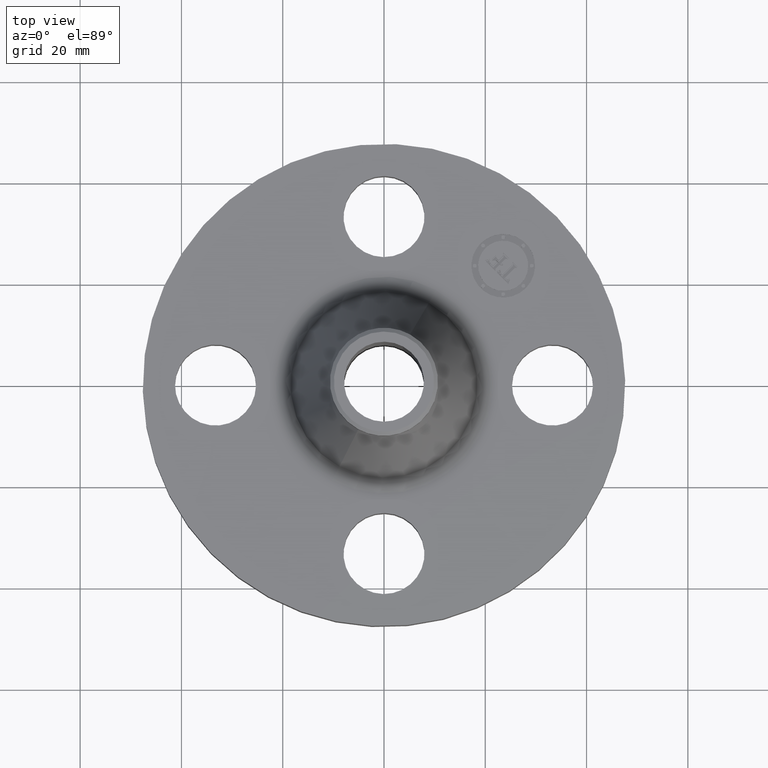
[diagram: clean part render]
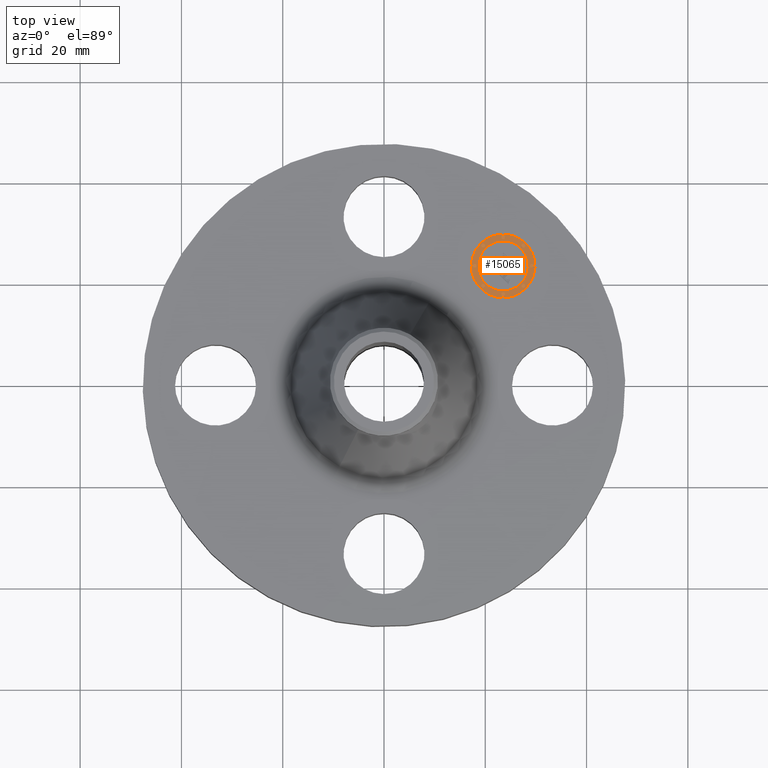
[diagram: same view with one face highlighted and labeled with its STEP entity id]
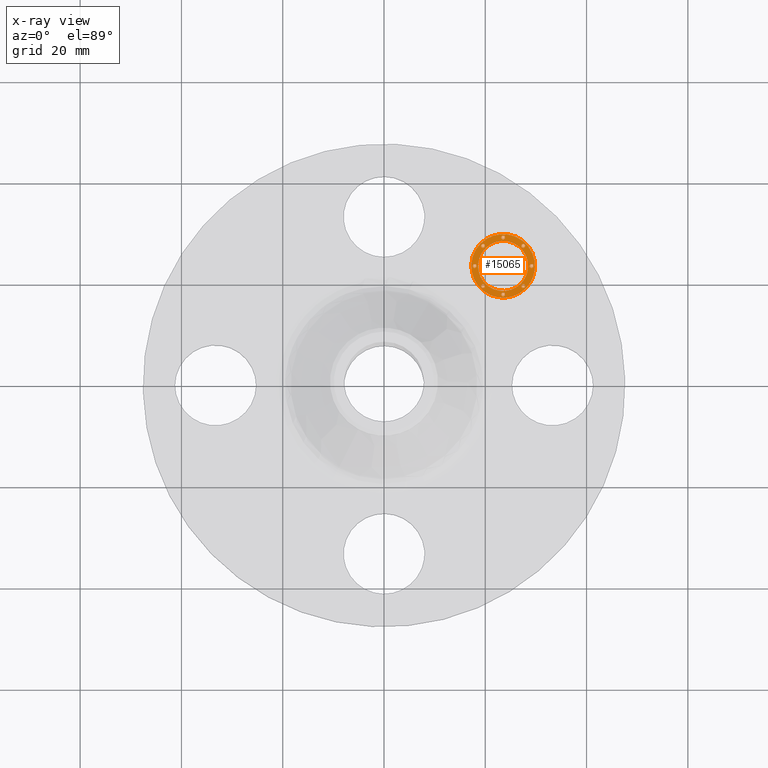
[diagram: x-ray of the same camera — body ghosted, the highlighted face saturated]
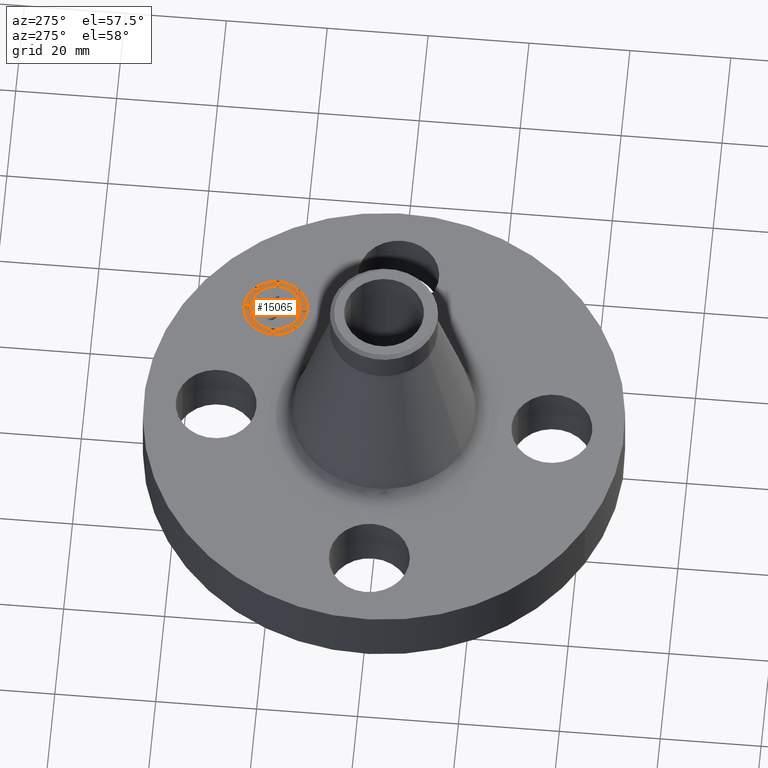
[diagram: same view with one face highlighted and labeled with its STEP entity id]
A machine part, top view. The second image highlights one B-rep face of the part: STEP entity #15065.
The next image is the same camera in x-ray: the body ghosted, the highlighted face saturated — about 0% of this face is hidden behind the body in this view.
A second angle (auxiliary view) of the same face is appended — the face is thin or edge-on in the first view.
In plain terms, the highlighted planar face has unit normal (0, -0, 1).
Its self-contained STEP definition (entity closure, byte-faithful):
#3716=AXIS2_PLACEMENT_3D('Plane Axis2P3D',#3713,#3714,#3715) ;
#14887=AXIS2_PLACEMENT_3D('Circle Axis2P3D',#14885,#14886,$) ;
#14896=AXIS2_PLACEMENT_3D('Circle Axis2P3D',#14894,#14895,$) ;
#14905=AXIS2_PLACEMENT_3D('Circle Axis2P3D',#14903,#14904,$) ;
#14914=AXIS2_PLACEMENT_3D('Circle Axis2P3D',#14912,#14913,$) ;
#14923=AXIS2_PLACEMENT_3D('Circle Axis2P3D',#14921,#14922,$) ;
#14932=AXIS2_PLACEMENT_3D('Circle Axis2P3D',#14930,#14931,$) ;
#14941=AXIS2_PLACEMENT_3D('Circle Axis2P3D',#14939,#14940,$) ;
#14950=AXIS2_PLACEMENT_3D('Circle Axis2P3D',#14948,#14949,$) ;
#14959=AXIS2_PLACEMENT_3D('Circle Axis2P3D',#14957,#14958,$) ;
#14968=AXIS2_PLACEMENT_3D('Circle Axis2P3D',#14966,#14967,$) ;
#14977=AXIS2_PLACEMENT_3D('Circle Axis2P3D',#14975,#14976,$) ;
#14986=AXIS2_PLACEMENT_3D('Circle Axis2P3D',#14984,#14985,$) ;
#14995=AXIS2_PLACEMENT_3D('Circle Axis2P3D',#14993,#14994,$) ;
#15004=AXIS2_PLACEMENT_3D('Circle Axis2P3D',#15002,#15003,$) ;
#15013=AXIS2_PLACEMENT_3D('Circle Axis2P3D',#15011,#15012,$) ;
#15022=AXIS2_PLACEMENT_3D('Circle Axis2P3D',#15020,#15021,$) ;
#15031=AXIS2_PLACEMENT_3D('Circle Axis2P3D',#15029,#15030,$) ;
#15040=AXIS2_PLACEMENT_3D('Circle Axis2P3D',#15038,#15039,$) ;
#15049=AXIS2_PLACEMENT_3D('Circle Axis2P3D',#15047,#15048,$) ;
#15058=AXIS2_PLACEMENT_3D('Circle Axis2P3D',#15056,#15057,$) ;
#3713=CARTESIAN_POINT('Axis2P3D Location',(0.,0.,0.485000000002)) ;
#14885=CARTESIAN_POINT('Axis2P3D Location',(0.926309883358,0.926309883358,0.485000000002)) ;
#14889=CARTESIAN_POINT('Vertex',(0.751300955014,1.1013188117,0.485000000002)) ;
#14891=CARTESIAN_POINT('Vertex',(1.1013188117,0.751300955014,0.485000000002)) ;
#14894=CARTESIAN_POINT('Axis2P3D Location',(0.926309883358,0.926309883358,0.485000000002)) ;
#14903=CARTESIAN_POINT('Axis2P3D Location',(0.926309883358,0.926309883358,0.485000000002)) ;
#14907=CARTESIAN_POINT('Vertex',(1.06419570569,0.788424061026,0.485000000002)) ;
#14909=CARTESIAN_POINT('Vertex',(0.788424061026,1.06419570569,0.485000000002)) ;
#14912=CARTESIAN_POINT('Axis2P3D Location',(0.926309883358,0.926309883358,0.485000000002)) ;
#14921=CARTESIAN_POINT('Axis2P3D Location',(0.76986250802,0.76986250802,0.485000000002)) ;
#14925=CARTESIAN_POINT('Vertex',(0.780469109738,0.759255906302,0.485000000002)) ;
#14927=CARTESIAN_POINT('Vertex',(0.759255906302,0.780469109738,0.485000000002)) ;
#14930=CARTESIAN_POINT('Axis2P3D Location',(0.76986250802,0.76986250802,0.485000000002)) ;
#14939=CARTESIAN_POINT('Axis2P3D Location',(0.76986250802,1.0827572587,0.485000000002)) ;
#14943=CARTESIAN_POINT('Vertex',(0.780469109738,1.07215065698,0.485000000002)) ;
#14945=CARTESIAN_POINT('Vertex',(0.759255906302,1.09336386041,0.485000000002)) ;
#14948=CARTESIAN_POINT('Axis2P3D Location',(0.76986250802,1.0827572587,0.485000000002)) ;
#14957=CARTESIAN_POINT('Axis2P3D Location',(0.705059883357,0.926309883358,0.485000000002)) ;
#14961=CARTESIAN_POINT('Vertex',(0.715666485075,0.91570328164,0.485000000002)) ;
#14963=CARTESIAN_POINT('Vertex',(0.694453281639,0.936916485076,0.485000000002)) ;
#14966=CARTESIAN_POINT('Axis2P3D Location',(0.705059883357,0.926309883358,0.485000000002)) ;
#14975=CARTESIAN_POINT('Axis2P3D Location',(1.0827572587,1.0827572587,0.485000000002)) ;
#14979=CARTESIAN_POINT('Vertex',(1.09336386041,1.07215065698,0.485000000002)) ;
#14981=CARTESIAN_POINT('Vertex',(1.07215065698,1.09336386041,0.485000000002)) ;
#14984=CARTESIAN_POINT('Axis2P3D Location',(1.0827572587,1.0827572587,0.485000000002)) ;
#14993=CARTESIAN_POINT('Axis2P3D Location',(0.926309883358,1.14755988336,0.485000000002)) ;
#14997=CARTESIAN_POINT('Vertex',(0.936916485076,1.13695328164,0.485000000002)) ;
#14999=CARTESIAN_POINT('Vertex',(0.91570328164,1.15816648508,0.485000000002)) ;
#15002=CARTESIAN_POINT('Axis2P3D Location',(0.926309883358,1.14755988336,0.485000000002)) ;
#15011=CARTESIAN_POINT('Axis2P3D Location',(1.0827572587,0.76986250802,0.485000000002)) ;
#15015=CARTESIAN_POINT('Vertex',(1.07215065698,0.780469109738,0.485000000002)) ;
#15017=CARTESIAN_POINT('Vertex',(1.09336386041,0.759255906302,0.485000000002)) ;
#15020=CARTESIAN_POINT('Axis2P3D Location',(1.0827572587,0.76986250802,0.485000000002)) ;
#15029=CARTESIAN_POINT('Axis2P3D Location',(0.926309883358,0.705059883357,0.485000000002)) ;
#15033=CARTESIAN_POINT('Vertex',(0.91570328164,0.715666485075,0.485000000002)) ;
#15035=CARTESIAN_POINT('Vertex',(0.936916485076,0.694453281639,0.485000000002)) ;
#15038=CARTESIAN_POINT('Axis2P3D Location',(0.926309883358,0.705059883357,0.485000000002)) ;
#15047=CARTESIAN_POINT('Axis2P3D Location',(1.14755988336,0.926309883358,0.485000000002)) ;
#15051=CARTESIAN_POINT('Vertex',(1.13695328164,0.936916485076,0.485000000002)) ;
#15053=CARTESIAN_POINT('Vertex',(1.15816648508,0.91570328164,0.485000000002)) ;
#15056=CARTESIAN_POINT('Axis2P3D Location',(1.14755988336,0.926309883358,0.485000000002)) ;
#3714=DIRECTION('Axis2P3D Direction',(0.,-0.,0.0393700787402)) ;
#3715=DIRECTION('Axis2P3D XDirection',(0.027838849653,0.027838849653,0.)) ;
#14886=DIRECTION('Axis2P3D Direction',(0.,-0.,0.0393700787402)) ;
#14895=DIRECTION('Axis2P3D Direction',(0.,-0.,0.0393700787402)) ;
#14904=DIRECTION('Axis2P3D Direction',(0.,-0.,0.0393700787402)) ;
#14913=DIRECTION('Axis2P3D Direction',(0.,-0.,0.0393700787402)) ;
#14922=DIRECTION('Axis2P3D Direction',(0.,-0.,0.0393700787402)) ;
#14931=DIRECTION('Axis2P3D Direction',(0.,-0.,0.0393700787402)) ;
#14940=DIRECTION('Axis2P3D Direction',(0.,-0.,0.0393700787402)) ;
#14949=DIRECTION('Axis2P3D Direction',(0.,-0.,0.0393700787402)) ;
#14958=DIRECTION('Axis2P3D Direction',(0.,-0.,0.0393700787402)) ;
#14967=DIRECTION('Axis2P3D Direction',(0.,-0.,0.0393700787402)) ;
#14976=DIRECTION('Axis2P3D Direction',(0.,-0.,0.0393700787402)) ;
#14985=DIRECTION('Axis2P3D Direction',(0.,-0.,0.0393700787402)) ;
#14994=DIRECTION('Axis2P3D Direction',(0.,-0.,0.0393700787402)) ;
#15003=DIRECTION('Axis2P3D Direction',(0.,-0.,0.0393700787402)) ;
#15012=DIRECTION('Axis2P3D Direction',(0.,-0.,0.0393700787402)) ;
#15021=DIRECTION('Axis2P3D Direction',(0.,-0.,0.0393700787402)) ;
#15030=DIRECTION('Axis2P3D Direction',(0.,-0.,0.0393700787402)) ;
#15039=DIRECTION('Axis2P3D Direction',(0.,-0.,0.0393700787402)) ;
#15048=DIRECTION('Axis2P3D Direction',(0.,-0.,0.0393700787402)) ;
#15057=DIRECTION('Axis2P3D Direction',(0.,-0.,0.0393700787402)) ;
#14900=ORIENTED_EDGE('',*,*,#14893,.T.) ;
#14901=ORIENTED_EDGE('',*,*,#14898,.T.) ;
#14918=ORIENTED_EDGE('',*,*,#14911,.F.) ;
#14919=ORIENTED_EDGE('',*,*,#14916,.F.) ;
#14936=ORIENTED_EDGE('',*,*,#14929,.F.) ;
#14937=ORIENTED_EDGE('',*,*,#14934,.F.) ;
#14954=ORIENTED_EDGE('',*,*,#14947,.F.) ;
#14955=ORIENTED_EDGE('',*,*,#14952,.F.) ;
#14972=ORIENTED_EDGE('',*,*,#14965,.F.) ;
#14973=ORIENTED_EDGE('',*,*,#14970,.F.) ;
#14990=ORIENTED_EDGE('',*,*,#14983,.F.) ;
#14991=ORIENTED_EDGE('',*,*,#14988,.F.) ;
#15008=ORIENTED_EDGE('',*,*,#15001,.F.) ;
#15009=ORIENTED_EDGE('',*,*,#15006,.F.) ;
#15026=ORIENTED_EDGE('',*,*,#15019,.F.) ;
#15027=ORIENTED_EDGE('',*,*,#15024,.F.) ;
#15044=ORIENTED_EDGE('',*,*,#15037,.F.) ;
#15045=ORIENTED_EDGE('',*,*,#15042,.F.) ;
#15062=ORIENTED_EDGE('',*,*,#15055,.F.) ;
#15063=ORIENTED_EDGE('',*,*,#15060,.F.) ;
#14920=FACE_BOUND('',#14917,.T.) ;
#14938=FACE_BOUND('',#14935,.T.) ;
#14956=FACE_BOUND('',#14953,.T.) ;
#14974=FACE_BOUND('',#14971,.T.) ;
#14992=FACE_BOUND('',#14989,.T.) ;
#15010=FACE_BOUND('',#15007,.T.) ;
#15028=FACE_BOUND('',#15025,.T.) ;
#15046=FACE_BOUND('',#15043,.T.) ;
#15064=FACE_BOUND('',#15061,.T.) ;
#15065=ADVANCED_FACE('PartBody',(#14902,#14920,#14938,#14956,#14974,#14992,#15010,#15028,#15046,#15064),#3717,.T.) ;
#14888=CIRCLE('generated circle',#14887,0.247500000001) ;
#14897=CIRCLE('generated circle',#14896,0.247500000001) ;
#14906=CIRCLE('generated circle',#14905,0.195000000001) ;
#14915=CIRCLE('generated circle',#14914,0.195000000001) ;
#14924=CIRCLE('generated circle',#14923,0.0150000000001) ;
#14933=CIRCLE('generated circle',#14932,0.0150000000001) ;
#14942=CIRCLE('generated circle',#14941,0.0150000000001) ;
#14951=CIRCLE('generated circle',#14950,0.0150000000001) ;
#14960=CIRCLE('generated circle',#14959,0.0150000000001) ;
#14969=CIRCLE('generated circle',#14968,0.0150000000001) ;
#14978=CIRCLE('generated circle',#14977,0.0150000000001) ;
#14987=CIRCLE('generated circle',#14986,0.0150000000001) ;
#14996=CIRCLE('generated circle',#14995,0.0150000000001) ;
#15005=CIRCLE('generated circle',#15004,0.0150000000001) ;
#15014=CIRCLE('generated circle',#15013,0.0150000000001) ;
#15023=CIRCLE('generated circle',#15022,0.0150000000001) ;
#15032=CIRCLE('generated circle',#15031,0.0150000000001) ;
#15041=CIRCLE('generated circle',#15040,0.0150000000001) ;
#15050=CIRCLE('generated circle',#15049,0.0150000000001) ;
#15059=CIRCLE('generated circle',#15058,0.0150000000001) ;
#14893=EDGE_CURVE('',#14890,#14892,#14888,.T.) ;
#14898=EDGE_CURVE('',#14892,#14890,#14897,.T.) ;
#14911=EDGE_CURVE('',#14908,#14910,#14906,.T.) ;
#14916=EDGE_CURVE('',#14910,#14908,#14915,.T.) ;
#14929=EDGE_CURVE('',#14926,#14928,#14924,.T.) ;
#14934=EDGE_CURVE('',#14928,#14926,#14933,.T.) ;
#14947=EDGE_CURVE('',#14944,#14946,#14942,.T.) ;
#14952=EDGE_CURVE('',#14946,#14944,#14951,.T.) ;
#14965=EDGE_CURVE('',#14962,#14964,#14960,.T.) ;
#14970=EDGE_CURVE('',#14964,#14962,#14969,.T.) ;
#14983=EDGE_CURVE('',#14980,#14982,#14978,.T.) ;
#14988=EDGE_CURVE('',#14982,#14980,#14987,.T.) ;
#15001=EDGE_CURVE('',#14998,#15000,#14996,.T.) ;
#15006=EDGE_CURVE('',#15000,#14998,#15005,.T.) ;
#15019=EDGE_CURVE('',#15016,#15018,#15014,.T.) ;
#15024=EDGE_CURVE('',#15018,#15016,#15023,.T.) ;
#15037=EDGE_CURVE('',#15034,#15036,#15032,.T.) ;
#15042=EDGE_CURVE('',#15036,#15034,#15041,.T.) ;
#15055=EDGE_CURVE('',#15052,#15054,#15050,.T.) ;
#15060=EDGE_CURVE('',#15054,#15052,#15059,.T.) ;
#14899=EDGE_LOOP('',(#14900,#14901)) ;
#14917=EDGE_LOOP('',(#14918,#14919)) ;
#14935=EDGE_LOOP('',(#14936,#14937)) ;
#14953=EDGE_LOOP('',(#14954,#14955)) ;
#14971=EDGE_LOOP('',(#14972,#14973)) ;
#14989=EDGE_LOOP('',(#14990,#14991)) ;
#15007=EDGE_LOOP('',(#15008,#15009)) ;
#15025=EDGE_LOOP('',(#15026,#15027)) ;
#15043=EDGE_LOOP('',(#15044,#15045)) ;
#15061=EDGE_LOOP('',(#15062,#15063)) ;
#14902=FACE_OUTER_BOUND('',#14899,.T.) ;
#3717=PLANE('',#3716) ;
#14890=VERTEX_POINT('',#14889) ;
#14892=VERTEX_POINT('',#14891) ;
#14908=VERTEX_POINT('',#14907) ;
#14910=VERTEX_POINT('',#14909) ;
#14926=VERTEX_POINT('',#14925) ;
#14928=VERTEX_POINT('',#14927) ;
#14944=VERTEX_POINT('',#14943) ;
#14946=VERTEX_POINT('',#14945) ;
#14962=VERTEX_POINT('',#14961) ;
#14964=VERTEX_POINT('',#14963) ;
#14980=VERTEX_POINT('',#14979) ;
#14982=VERTEX_POINT('',#14981) ;
#14998=VERTEX_POINT('',#14997) ;
#15000=VERTEX_POINT('',#14999) ;
#15016=VERTEX_POINT('',#15015) ;
#15018=VERTEX_POINT('',#15017) ;
#15034=VERTEX_POINT('',#15033) ;
#15036=VERTEX_POINT('',#15035) ;
#15052=VERTEX_POINT('',#15051) ;
#15054=VERTEX_POINT('',#15053) ;